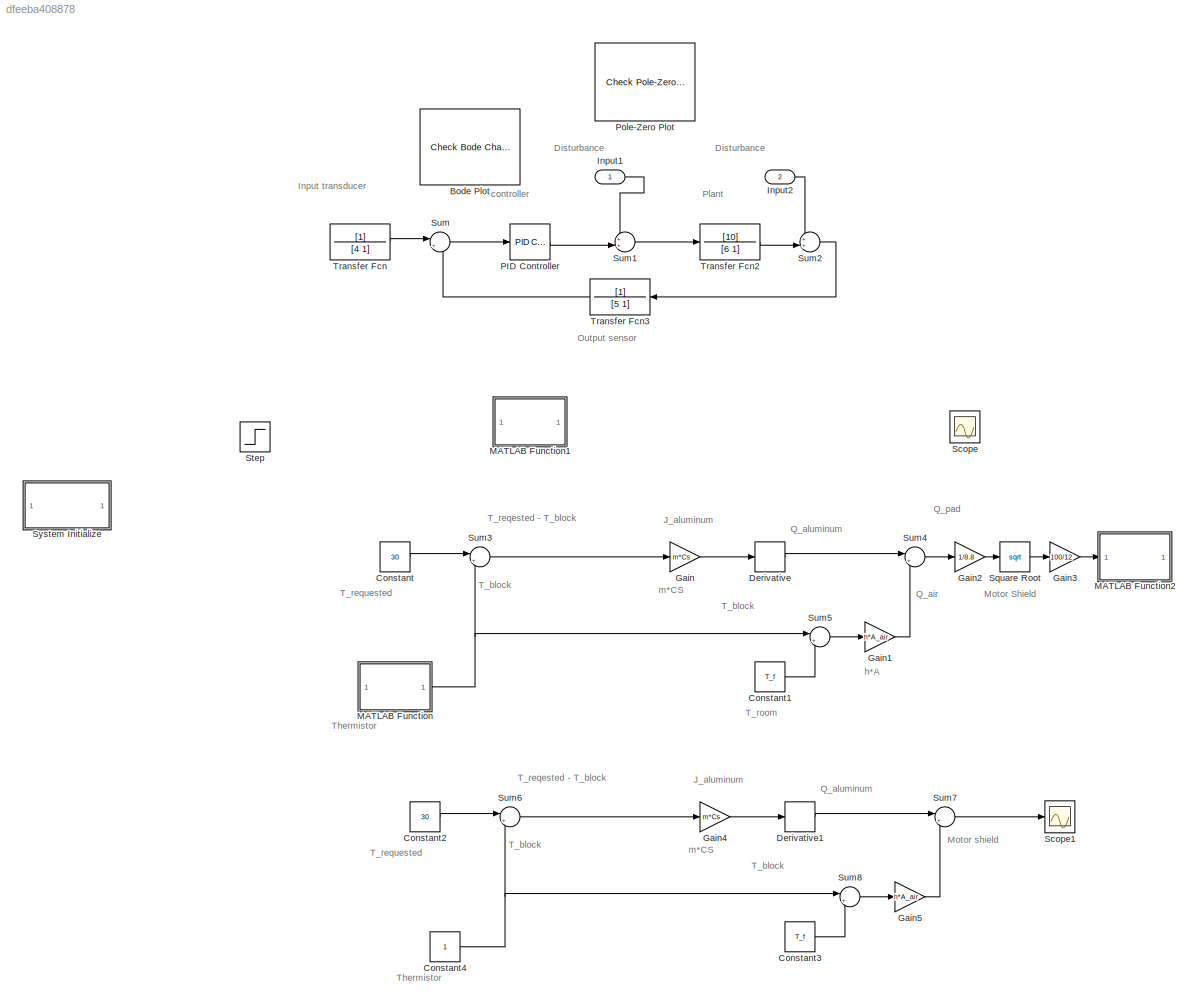
MODEL slx_dfeeba408878
KIND model
CONFIG AbsTol = auto
CONFIG EnableMultiTasking = off
CONFIG FixedStep = auto
CONFIG MaxStep = auto
CONFIG MinStep = auto
CONFIG RelTol = 1e-3
CONFIG SampleTimeConstraint = Unconstrained
CONFIG SolverName = VariableStepAuto
CONFIG StartTime = 0.0
CONFIG StopTime = 10.0
BLOCK [Reference] Bode Plot  REF=slctrl_linear/Check Bode 
Characteristics
  InstantiateOnLoad = on
  LibrarySourceBlock = slctrlblks/Linear Analysis Plots/Bode Plot
  SourceBlock = slctrl_linear/Check Bode \nCharacteristics
  SourceType = Checks_Bode
BLOCK [Constant] Constant
  Value = 30
BLOCK [Constant] Constant1
  Value = T_f
BLOCK [Constant] Constant2
  Value = 30
BLOCK [Constant] Constant3
  Value = T_f
BLOCK [Constant] Constant4
BLOCK [Derivative] Derivative
BLOCK [Derivative] Derivative1
BLOCK [Gain] Gain
  Gain = m*Cs
BLOCK [Gain] Gain1
  Gain = h*A_air
BLOCK [Gain] Gain2
  Gain = 1/8.8
BLOCK [Gain] Gain3
  Gain = 100/12
BLOCK [Gain] Gain4
  Gain = m*Cs
BLOCK [Gain] Gain5
  Gain = h*A_air
BLOCK [Inport] Input1
BLOCK [Inport] Input2
  Port = 2
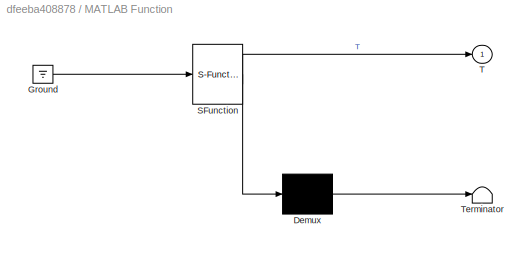
BLOCK [SubSystem] MATLAB Function
  ErrorFcn = Stateflow.Translate.translate
  PermitHierarchicalResolution = ExplicitOnly
  SFBlockType = MATLAB Function
  TreatAsAtomicUnit = on
BLOCK [Demux] MATLAB Function/ Demux 
  Outputs = 1
BLOCK [Ground] MATLAB Function/ Ground 
BLOCK [S-Function] MATLAB Function/ SFunction 
  EnableBusSupport = on
  FunctionName = sf_sfun
  PortCounts = [1 2]
  SFcnIsStateOwnerBlock = off
  SFunctionDeploymentMode = off
  Tag = Stateflow S-Function 2
BLOCK [Terminator] MATLAB Function/ Terminator 
BLOCK [Outport] MATLAB Function/T
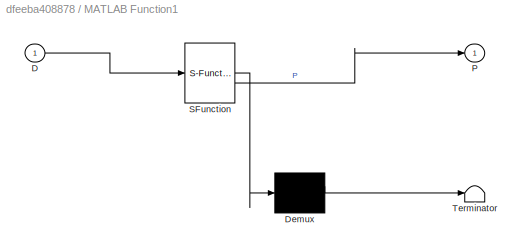
BLOCK [SubSystem] MATLAB Function1
  ErrorFcn = Stateflow.Translate.translate
  PermitHierarchicalResolution = ExplicitOnly
  SFBlockType = MATLAB Function
  TreatAsAtomicUnit = on
BLOCK [Demux] MATLAB Function1/ Demux 
  Outputs = 1
BLOCK [S-Function] MATLAB Function1/ SFunction 
  EnableBusSupport = on
  FunctionName = sf_sfun
  PortCounts = [1 2]
  SFcnIsStateOwnerBlock = off
  SFunctionDeploymentMode = off
  Tag = Stateflow S-Function 1
BLOCK [Terminator] MATLAB Function1/ Terminator 
BLOCK [Inport] MATLAB Function1/D
BLOCK [Outport] MATLAB Function1/P
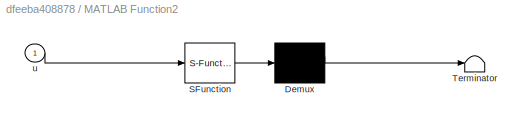
BLOCK [SubSystem] MATLAB Function2
  ErrorFcn = Stateflow.Translate.translate
  PermitHierarchicalResolution = ExplicitOnly
  SFBlockType = MATLAB Function
  TreatAsAtomicUnit = on
BLOCK [Demux] MATLAB Function2/ Demux 
  Outputs = 1
BLOCK [S-Function] MATLAB Function2/ SFunction 
  EnableBusSupport = on
  FunctionName = sf_sfun
  PortCounts = [1 1]
  SFcnIsStateOwnerBlock = off
  SFunctionDeploymentMode = off
  Tag = Stateflow S-Function 3
BLOCK [Terminator] MATLAB Function2/ Terminator 
BLOCK [Inport] MATLAB Function2/u
BLOCK [Reference] PID Controller  REF=slpidlib/PID Controller
  LibrarySourceBlock = simulink/Continuous/PID Controller
  SourceBlock = slpidlib/PID Controller
  SourceType = PID 1dof
BLOCK [Reference] Pole-Zero Plot  REF=slctrl_linear/Check Pole-Zero
Characteristics
  InstantiateOnLoad = on
  LibrarySourceBlock = slctrlblks/Linear Analysis Plots/Pole-Zero Plot
  SourceBlock = slctrl_linear/Check Pole-Zero\nCharacteristics
  SourceType = Checks_PZMap
BLOCK [Scope] Scope
  Floating = off
  NumInputPorts = 1
  ScopeSpecificationString = Simulink.scopes.TimeScopeBlockCfg('CurrentConfiguration', extmgr.ConfigurationSet(extmgr.Configuration('Core','General UI',true),extmgr.Configuration('Core','Source UI',true),extmgr.Configuration('Sources','WiredSimulink',true),extmgr.Configuration('Visuals','Time Domain',true,'SerializedDisplays',{struct('MinYLimReal','-0.18764','MaxYLimReal','1.6888','YLabelReal','','MinYLimMag','0.00000','MaxYL...<+1438ch>
BLOCK [Scope] Scope1
  Floating = off
  NumInputPorts = 1
  ScopeSpecificationString = Simulink.scopes.TimeScopeBlockCfg('CurrentConfiguration', extmgr.ConfigurationSet(extmgr.Configuration('Core','General UI',true),extmgr.Configuration('Core','Source UI',true),extmgr.Configuration('Sources','WiredSimulink',true,'DataLoggingVariableName','ScopeData1'),extmgr.Configuration('Visuals','Time Domain',true),extmgr.Configuration('Tools','Plot Navigation',true),extmgr.Configuration('Tools',...<+40ch>
BLOCK [Sqrt] Square Root
BLOCK [Step] Step
  SampleTime = 0
BLOCK [Sum] Sum
  Inputs = |+-
BLOCK [Sum] Sum1
  Inputs = ++|
  NameLocation = top
BLOCK [Sum] Sum2
  Inputs = ++|
BLOCK [Sum] Sum3
  Inputs = |+-
BLOCK [Sum] Sum4
  Inputs = |+-
  NameLocation = top
BLOCK [Sum] Sum5
  Inputs = |+-
BLOCK [Sum] Sum6
  Inputs = |+-
BLOCK [Sum] Sum7
  Inputs = |+-
  NameLocation = top
BLOCK [Sum] Sum8
  Inputs = |+-
BLOCK [SubSystem] System Initialize
  CopyFcn = cccopyfcn(gcb)
  OpenFcn = ccopenfcn('System Initialize Function')
BLOCK [TransferFcn] Transfer Fcn
  Denominator = [4 1]
BLOCK [TransferFcn] Transfer Fcn2
  Denominator = [6 1]
  Numerator = [10]
BLOCK [TransferFcn] Transfer Fcn3
  Denominator = [5 1]
ANNOTATION (root): Disturbance
ANNOTATION (root): Input transducer
ANNOTATION (root): J_aluminum
ANNOTATION (root): Motor Shield
ANNOTATION (root): Motor shield
ANNOTATION (root): Output sensor
ANNOTATION (root): Plant
ANNOTATION (root): Q_air
ANNOTATION (root): Q_aluminum
ANNOTATION (root): Q_pad
ANNOTATION (root): T_block
ANNOTATION (root): T_reqested - T_block
ANNOTATION (root): T_requested
ANNOTATION (root): T_room
ANNOTATION (root): Thermistor
ANNOTATION (root): controller
ANNOTATION (root): h*A
ANNOTATION (root): m*CS
LINE Constant1:1 -> Sum5:2
LINE Constant2:1 -> Sum6:1
LINE Constant3:1 -> Sum8:2
NET Constant4:1 -> Sum6:2, Sum8:1
LINE Constant:1 -> Sum3:1
LINE Derivative1:1 -> Sum7:1
LINE Derivative:1 -> Sum4:1
LINE Gain1:1 -> Sum4:2
LINE Gain2:1 -> Square Root:1
LINE Gain3:1 -> MATLAB Function2:1
LINE Gain4:1 -> Derivative1:1
LINE Gain5:1 -> Sum7:2
LINE Gain:1 -> Derivative:1
LINE Input1:1 -> Sum1:1
LINE Input2:1 -> Sum2:1
NET MATLAB Function:1 -> Sum3:2, Sum5:1
LINE PID Controller:1 -> Sum1:2
LINE Square Root:1 -> Gain3:1
LINE Sum1:1 -> Transfer Fcn2:1
LINE Sum2:1 -> Transfer Fcn3:1
LINE Sum3:1 -> Gain:1
LINE Sum4:1 -> Gain2:1
LINE Sum5:1 -> Gain1:1
LINE Sum6:1 -> Gain4:1
LINE Sum7:1 -> Scope1:1
LINE Sum8:1 -> Gain5:1
LINE Sum:1 -> PID Controller:1
LINE Transfer Fcn2:1 -> Sum2:2
LINE Transfer Fcn3:1 -> Sum:2
LINE Transfer Fcn:1 -> Sum:1
note: NET lines group one-source signal fan-out (src -> all destinations, sorted); 1:1 wires keep LINE
CHART MATLAB Function states=1 transitions=1
  STATE_LABEL 'eML_blk_kernel()'
  STATE_LABEL 'SCRIPT:\n\nfunction T = fcn()\n    a = arduino("COM7","Uno");\n    b = 3950;\n    R25 = 10000;\n    V_t = readVoltage(a,"A0");\n    R_t = 10000/(5/V_t  - 1);\n    T = 1/(log(R_t / R25)/b+1/298.15) - 273.15;\n'
CHART MATLAB Function2 states=1 transitions=1
  STATE_LABEL 'eML_blk_kernel()'
  STATE_LABEL 'SCRIPT:\nfunction fcn(u)\n    dcm.Speed(max(min(1,u),-1));\n'
CHART MATLAB Function1 states=1 transitions=1
  STATE_LABEL 'eML_blk_kernel()'
  STATE_LABEL 'SCRIPT:\nfunction P = fcn(D)\nP = (12*D)^2 * 8.8;\n'
CHART  states=0 transitions=0
CHART  states=0 transitions=0
CHART  states=0 transitions=0
